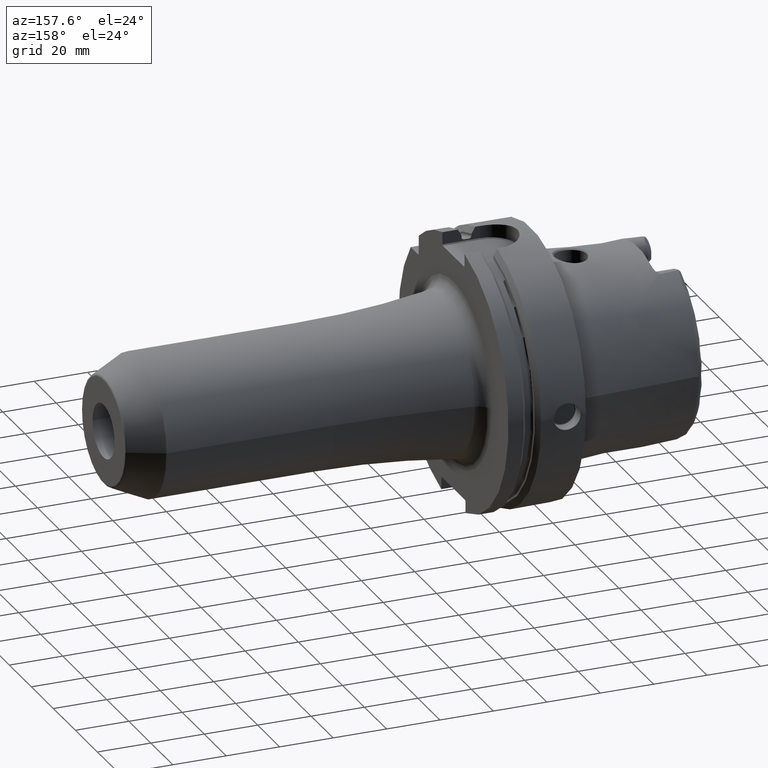
[diagram: clean part render]
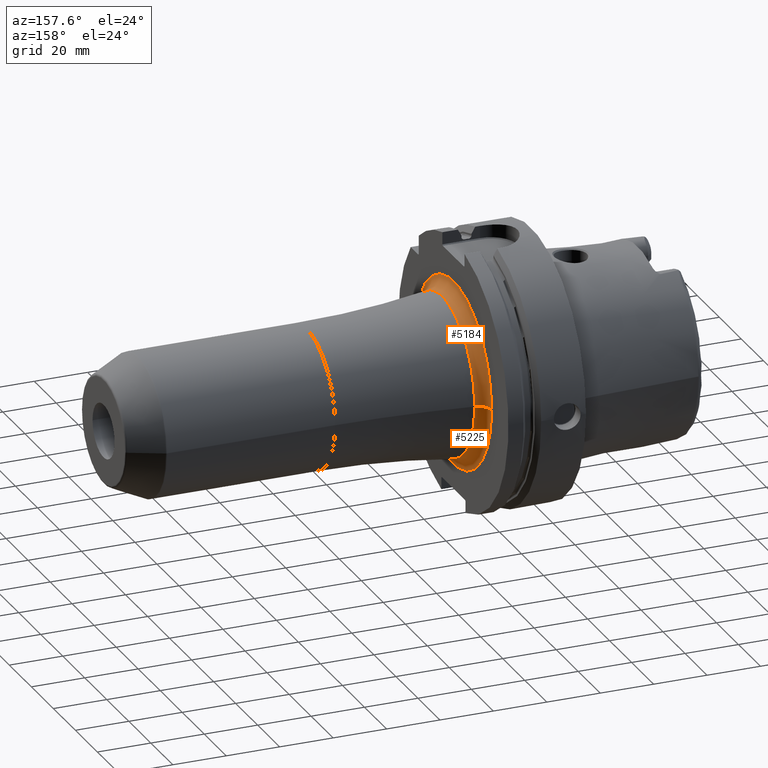
[diagram: same view with one multi-face feature highlighted, each face labeled with its STEP entity id]
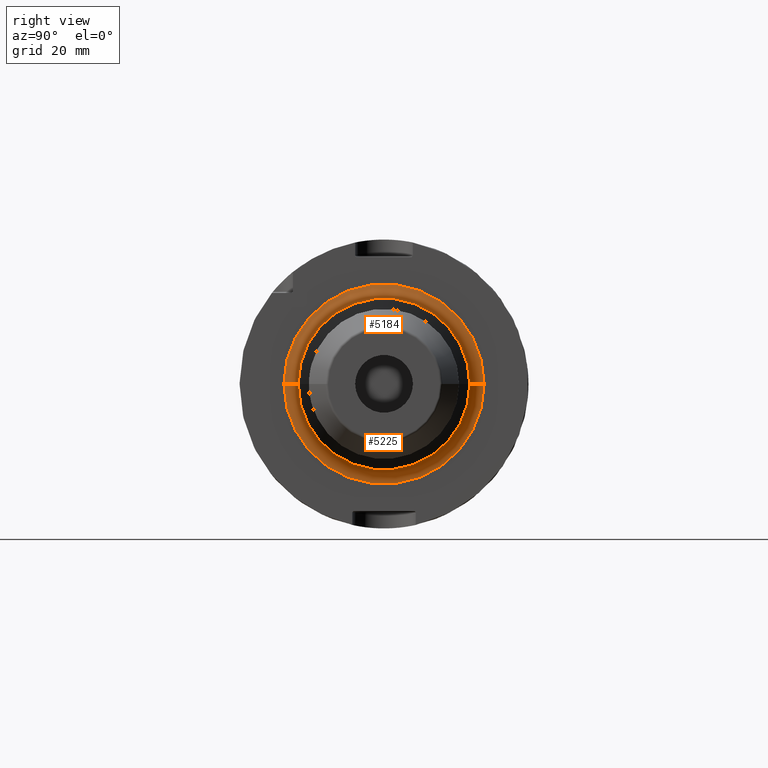
[diagram: same view with one multi-face feature highlighted, each face labeled with its STEP entity id]
A machine part, auxiliary view. The highlighted faces form ONE feature: a constant-radius fillet chain: 2 tangent blend faces with common blend radius 5 mm. The faces share edges in the B-rep.
A second angle (right view) of the same feature is appended — it is thin or edge-on in the first view.
Their STEP definitions:
[1] entity #5225 (Torus):
#1096=CARTESIAN_POINT('',(2.9E1,0.E0,0.E0));
#1097=DIRECTION('',(1.E0,0.E0,0.E0));
#1098=DIRECTION('',(0.E0,-1.E0,0.E0));
#1099=AXIS2_PLACEMENT_3D('',#1096,#1097,#1098);
#1810=CARTESIAN_POINT('',(3.4E1,3.464241622603E1,-7.184530748106E-14));
#1811=DIRECTION('',(0.E0,0.E0,1.E0));
#1812=DIRECTION('',(-1.E0,0.E0,0.E0));
#1813=AXIS2_PLACEMENT_3D('',#1810,#1811,#1812);
#1830=CARTESIAN_POINT('',(3.327536231884E1,0.E0,0.E0));
#1831=DIRECTION('',(1.E0,0.E0,0.E0));
#1832=DIRECTION('',(0.E0,-1.E0,0.E0));
#1833=AXIS2_PLACEMENT_3D('',#1830,#1831,#1832);
#1835=CARTESIAN_POINT('',(3.4E1,-3.464241622603E1,4.539424391936E-14));
#1836=DIRECTION('',(0.E0,0.E0,-1.E0));
#1837=DIRECTION('',(-1.E0,0.E0,0.E0));
#1838=AXIS2_PLACEMENT_3D('',#1835,#1836,#1837);
#3345=CARTESIAN_POINT('',(3.327536231884E1,2.969520486699E1,0.E0));
#3346=CARTESIAN_POINT('',(3.327536231884E1,-2.969520486699E1,0.E0));
#3347=VERTEX_POINT('',#3345);
#3348=VERTEX_POINT('',#3346);
#3349=CARTESIAN_POINT('',(2.9E1,3.464241622603E1,-1.883402625695E-14));
#3350=CARTESIAN_POINT('',(2.9E1,-3.464241622603E1,0.E0));
#3351=VERTEX_POINT('',#3349);
#3352=VERTEX_POINT('',#3350);
#5214=CARTESIAN_POINT('',(3.4E1,0.E0,0.E0));
#5215=DIRECTION('',(1.E0,0.E0,0.E0));
#5216=DIRECTION('',(0.E0,-9.999959722547E-1,2.838216743083E-3));
#5217=AXIS2_PLACEMENT_3D('',#5214,#5215,#5216);
#5218=TOROIDAL_SURFACE('',#5217,3.464241622603E1,5.E0);
#5219=ORIENTED_EDGE('',*,*,#4452,.F.);
#5220=ORIENTED_EDGE('',*,*,#5177,.T.);
#5221=ORIENTED_EDGE('',*,*,#5205,.T.);
#5222=ORIENTED_EDGE('',*,*,#5180,.F.);
#5223=EDGE_LOOP('',(#5219,#5220,#5221,#5222));
#5224=FACE_OUTER_BOUND('',#5223,.F.);
#5225=ADVANCED_FACE('',(#5224),#5218,.F.);
#1100=CIRCLE('',#1099,3.464241622603E1);
#1814=CIRCLE('',#1813,5.E0);
#1834=CIRCLE('',#1833,2.969520486699E1);
#1839=CIRCLE('',#1838,5.E0);
#4452=EDGE_CURVE('',#3352,#3351,#1100,.T.);
#5177=EDGE_CURVE('',#3352,#3348,#1839,.T.);
#5180=EDGE_CURVE('',#3351,#3347,#1814,.T.);
#5205=EDGE_CURVE('',#3348,#3347,#1834,.T.);
[2] entity #5184 (Torus):
#1091=CARTESIAN_POINT('',(2.9E1,0.E0,0.E0));
#1092=DIRECTION('',(1.E0,0.E0,0.E0));
#1093=DIRECTION('',(0.E0,1.E0,0.E0));
#1094=AXIS2_PLACEMENT_3D('',#1091,#1092,#1093);
#1810=CARTESIAN_POINT('',(3.4E1,3.464241622603E1,-7.184530748106E-14));
#1811=DIRECTION('',(0.E0,0.E0,1.E0));
#1812=DIRECTION('',(-1.E0,0.E0,0.E0));
#1813=AXIS2_PLACEMENT_3D('',#1810,#1811,#1812);
#1815=CARTESIAN_POINT('',(3.327536231884E1,0.E0,0.E0));
#1816=DIRECTION('',(1.E0,0.E0,0.E0));
#1817=DIRECTION('',(0.E0,1.E0,0.E0));
#1818=AXIS2_PLACEMENT_3D('',#1815,#1816,#1817);
#1835=CARTESIAN_POINT('',(3.4E1,-3.464241622603E1,4.539424391936E-14));
#1836=DIRECTION('',(0.E0,0.E0,-1.E0));
#1837=DIRECTION('',(-1.E0,0.E0,0.E0));
#1838=AXIS2_PLACEMENT_3D('',#1835,#1836,#1837);
#3345=CARTESIAN_POINT('',(3.327536231884E1,2.969520486699E1,0.E0));
#3346=CARTESIAN_POINT('',(3.327536231884E1,-2.969520486699E1,0.E0));
#3347=VERTEX_POINT('',#3345);
#3348=VERTEX_POINT('',#3346);
#3349=CARTESIAN_POINT('',(2.9E1,3.464241622603E1,-1.883402625695E-14));
#3350=CARTESIAN_POINT('',(2.9E1,-3.464241622603E1,0.E0));
#3351=VERTEX_POINT('',#3349);
#3352=VERTEX_POINT('',#3350);
#5170=CARTESIAN_POINT('',(3.4E1,0.E0,0.E0));
#5171=DIRECTION('',(1.E0,0.E0,0.E0));
#5172=DIRECTION('',(0.E0,9.999959722547E-1,-2.838216743084E-3));
#5173=AXIS2_PLACEMENT_3D('',#5170,#5171,#5172);
#5174=TOROIDAL_SURFACE('',#5173,3.464241622603E1,5.E0);
#5176=ORIENTED_EDGE('',*,*,#5175,.T.);
#5178=ORIENTED_EDGE('',*,*,#5177,.F.);
#5179=ORIENTED_EDGE('',*,*,#4450,.F.);
#5181=ORIENTED_EDGE('',*,*,#5180,.T.);
#5182=EDGE_LOOP('',(#5176,#5178,#5179,#5181));
#5183=FACE_OUTER_BOUND('',#5182,.F.);
#5184=ADVANCED_FACE('',(#5183),#5174,.F.);
#1095=CIRCLE('',#1094,3.464241622603E1);
#1814=CIRCLE('',#1813,5.E0);
#1819=CIRCLE('',#1818,2.969520486699E1);
#1839=CIRCLE('',#1838,5.E0);
#4450=EDGE_CURVE('',#3351,#3352,#1095,.T.);
#5175=EDGE_CURVE('',#3347,#3348,#1819,.T.);
#5177=EDGE_CURVE('',#3352,#3348,#1839,.T.);
#5180=EDGE_CURVE('',#3351,#3347,#1814,.T.);